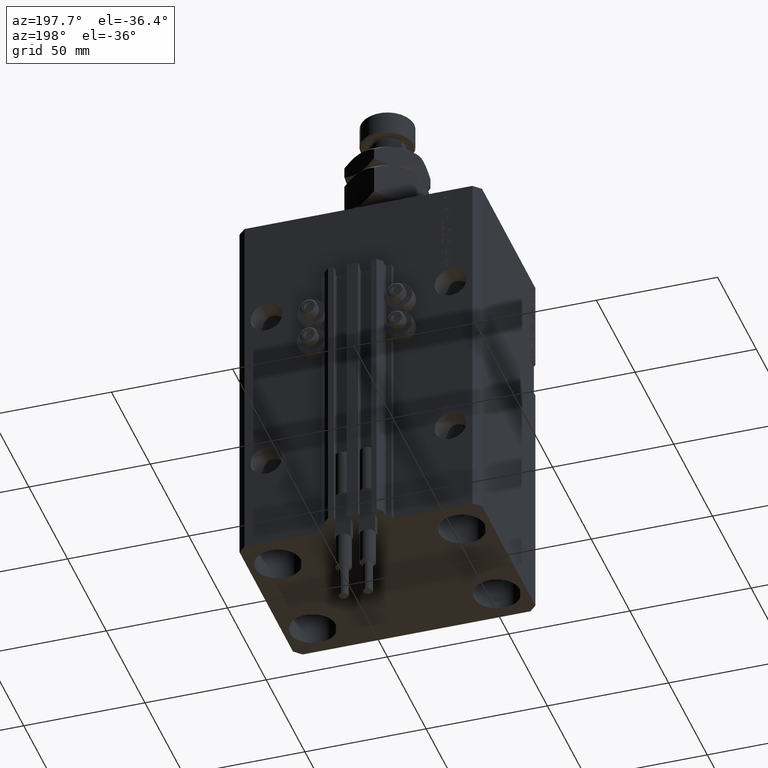
[diagram: clean part render]
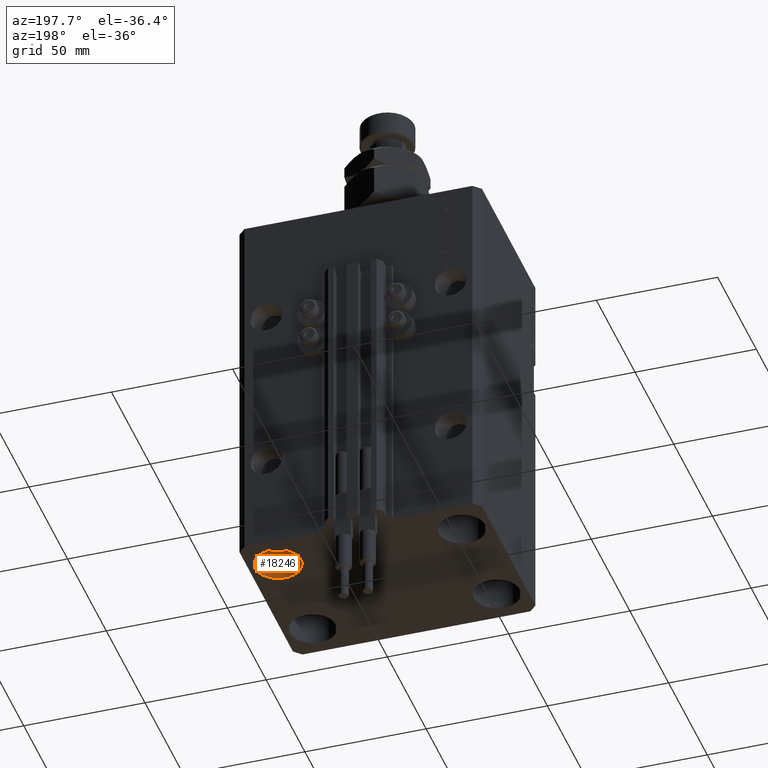
[diagram: same view with one face highlighted and labeled with its STEP entity id]
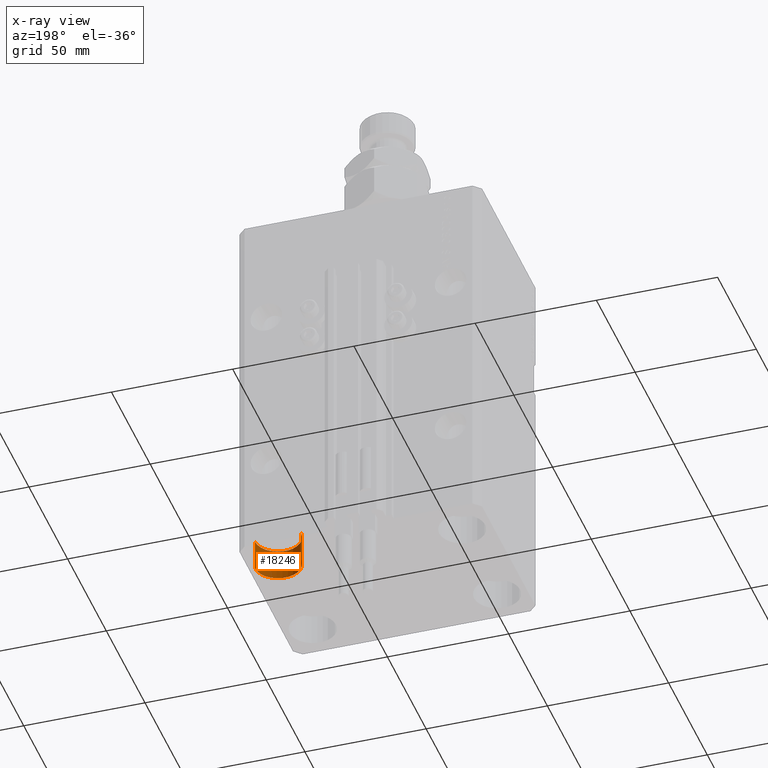
[diagram: x-ray of the same camera — body ghosted, the highlighted face saturated]
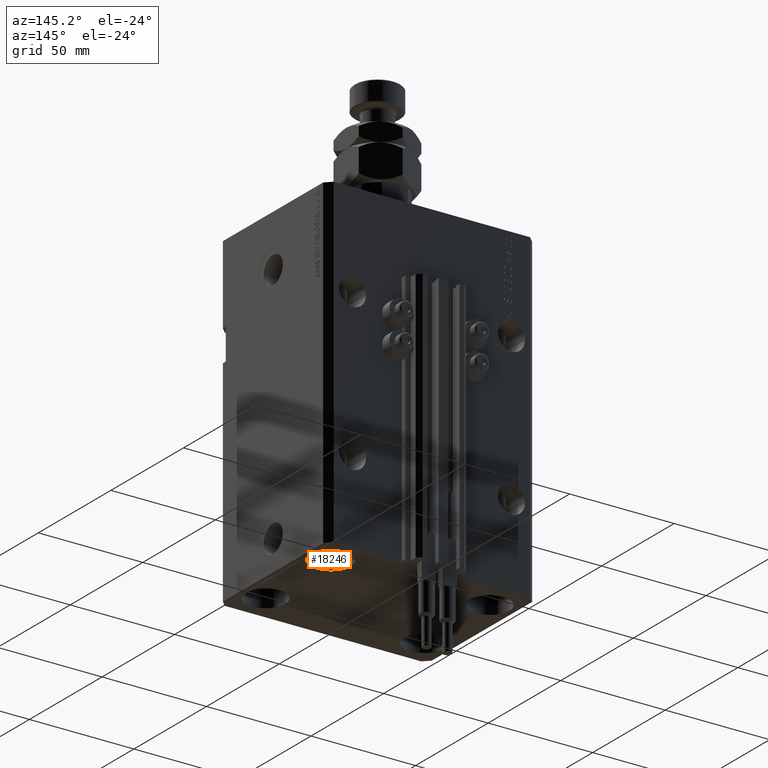
[diagram: same view with one face highlighted and labeled with its STEP entity id]
A machine part, auxiliary view. The second image highlights one B-rep face of the part: STEP entity #18246.
The next image is the same camera in x-ray: the body ghosted, the highlighted face saturated — about 0% of this face is hidden behind the body in this view.
A second angle (auxiliary view) of the same face is appended — the face is thin or edge-on in the first view.
In plain terms, the highlighted cylindrical surface (edge-blend (fillet) strip) has radius 9.5 mm, axis along (-0, -0, -1).
Its self-contained STEP definition (entity closure, byte-faithful):
#685 = AXIS2_PLACEMENT_3D ( 'NONE', #12492, #27638, #12246 ) ;
#1569 = CARTESIAN_POINT ( 'NONE',  ( 28.50000000000000355, 22.50000000000001421, -155.0000000000000000 ) ) ;
#3380 = VERTEX_POINT ( 'NONE', #1569 ) ;
#4614 = CARTESIAN_POINT ( 'NONE',  ( 38.00000000000000711, 22.50000000000001421, -142.0000000000000000 ) ) ;
#9095 = CIRCLE ( 'NONE', #39399, 9.500000000000001776 ) ;
#10170 = EDGE_CURVE ( 'NONE', #49030, #3380, #43231, .T. ) ;
#12198 = DIRECTION ( 'NONE',  ( -0.000000000000000000, -0.000000000000000000, -1.000000000000000000 ) ) ;
#12246 = DIRECTION ( 'NONE',  ( -1.000000000000000000, 0.000000000000000000, 0.000000000000000000 ) ) ;
#12492 = CARTESIAN_POINT ( 'NONE',  ( 38.00000000000000711, 22.50000000000001421, -142.0000000000000000 ) ) ;
#12903 = DIRECTION ( 'NONE',  ( -0.000000000000000000, -0.000000000000000000, -1.000000000000000000 ) ) ;
#13077 = ORIENTED_EDGE ( 'NONE', *, *, #49822, .T. ) ;
#15169 = CIRCLE ( 'NONE', #50386, 9.500000000000001776 ) ;
#18246 = ADVANCED_FACE ( 'NONE', ( #47380 ), #20185, .F. ) ;
#18548 = DIRECTION ( 'NONE',  ( -0.000000000000000000, -0.000000000000000000, 1.000000000000000000 ) ) ;
#20185 = CYLINDRICAL_SURFACE ( 'NONE', #685, 9.500000000000001776 ) ;
#21899 = EDGE_CURVE ( 'NONE', #31265, #37470, #36247, .T. ) ;
#23157 = CARTESIAN_POINT ( 'NONE',  ( 38.00000000000000711, 22.50000000000001421, -155.0000000000000000 ) ) ;
#24753 = CARTESIAN_POINT ( 'NONE',  ( 28.50000000000000355, 22.50000000000001421, -142.0000000000000000 ) ) ;
#27172 = EDGE_CURVE ( 'NONE', #3380, #37470, #9095, .T. ) ;
#27233 = EDGE_LOOP ( 'NONE', ( #13077, #50737, #49796, #42947 ) ) ;
#27638 = DIRECTION ( 'NONE',  ( -0.000000000000000000, -0.000000000000000000, -1.000000000000000000 ) ) ;
#28708 = DIRECTION ( 'NONE',  ( 1.000000000000000000, 0.000000000000000000, 0.000000000000000000 ) ) ;
#31265 = VERTEX_POINT ( 'NONE', #34730 ) ;
#31891 = CARTESIAN_POINT ( 'NONE',  ( 47.50000000000000711, 22.50000000000001421, -142.0000000000000000 ) ) ;
#32775 = VECTOR ( 'NONE', #12903, 1000.000000000000000 ) ;
#34730 = CARTESIAN_POINT ( 'NONE',  ( 47.50000000000000711, 22.50000000000001421, -142.0000000000000000 ) ) ;
#34804 = CARTESIAN_POINT ( 'NONE',  ( 28.50000000000000355, 22.50000000000001421, -142.0000000000000000 ) ) ;
#36247 = LINE ( 'NONE', #31891, #32775 ) ;
#37470 = VERTEX_POINT ( 'NONE', #45025 ) ;
#38809 = DIRECTION ( 'NONE',  ( 1.000000000000000000, 0.000000000000000000, 0.000000000000000000 ) ) ;
#39399 = AXIS2_PLACEMENT_3D ( 'NONE', #23157, #18548, #38809 ) ;
#40670 = VECTOR ( 'NONE', #12198, 1000.000000000000000 ) ;
#42947 = ORIENTED_EDGE ( 'NONE', *, *, #10170, .F. ) ;
#43231 = LINE ( 'NONE', #24753, #40670 ) ;
#44355 = DIRECTION ( 'NONE',  ( -0.000000000000000000, -0.000000000000000000, 1.000000000000000000 ) ) ;
#45025 = CARTESIAN_POINT ( 'NONE',  ( 47.50000000000000711, 22.50000000000001421, -155.0000000000000000 ) ) ;
#47380 = FACE_OUTER_BOUND ( 'NONE', #27233, .T. ) ;
#49030 = VERTEX_POINT ( 'NONE', #34804 ) ;
#49796 = ORIENTED_EDGE ( 'NONE', *, *, #27172, .F. ) ;
#49822 = EDGE_CURVE ( 'NONE', #49030, #31265, #15169, .T. ) ;
#50386 = AXIS2_PLACEMENT_3D ( 'NONE', #4614, #44355, #28708 ) ;
#50737 = ORIENTED_EDGE ( 'NONE', *, *, #21899, .T. ) ;